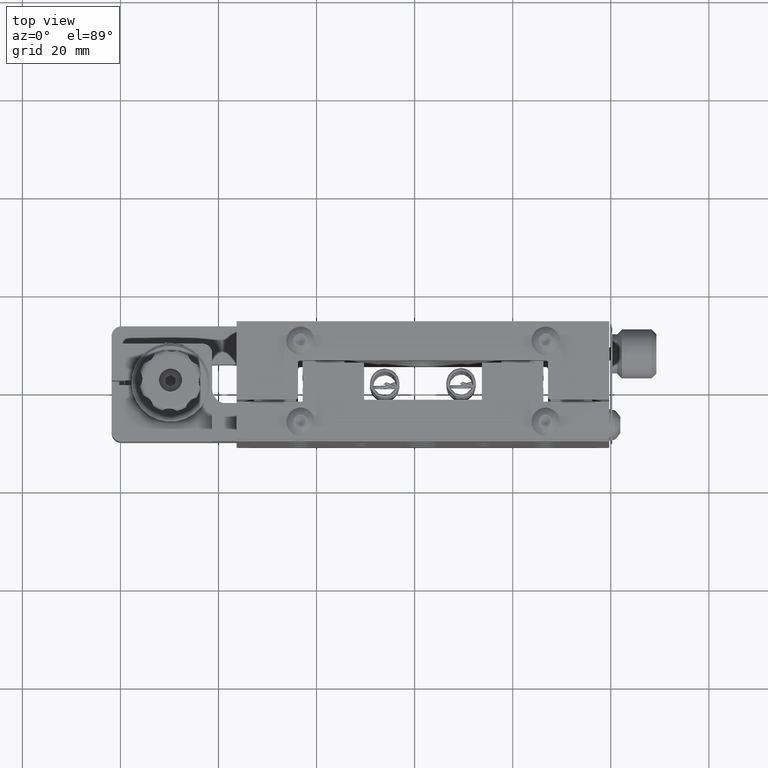
[diagram: clean part render]
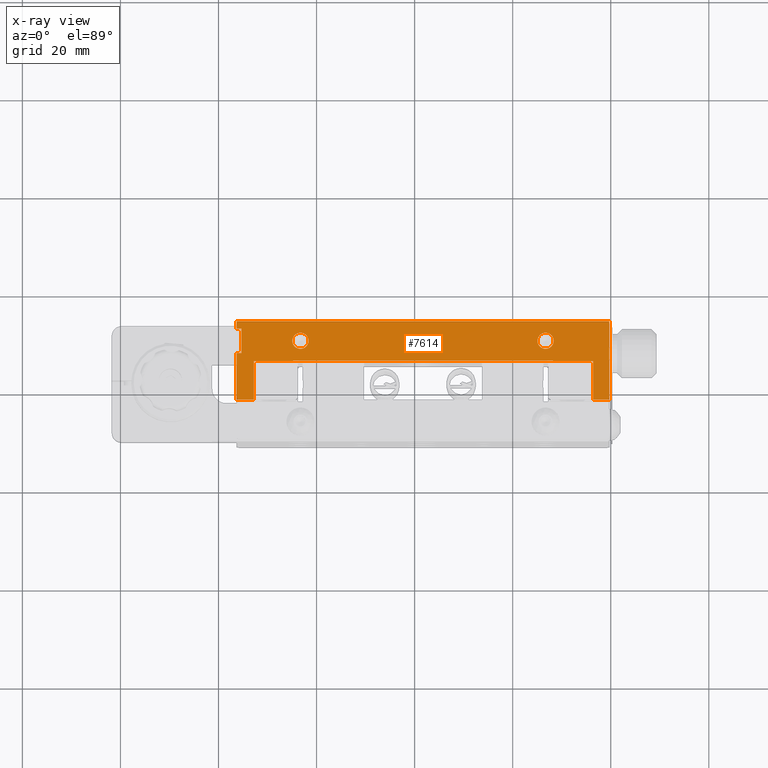
[diagram: x-ray — body ghosted, one internal face saturated and labeled with its STEP entity id]
A machine part, top view, then the same camera in x-ray: the body is ghosted and one INTERNAL B-rep face — a face not visible from any outside direction — is saturated and labeled: STEP entity #7614.
In plain terms, the highlighted planar face has unit normal (0, 0, 1).
Its self-contained STEP definition (entity closure, byte-faithful):
#820 = CARTESIAN_POINT ( 'NONE',  ( 56.40557582776700900, 5.506442215611681200, 149.1000000000000500 ) ) ;
#864 = VECTOR ( 'NONE', #60832, 1000.000000000000000 ) ;
#947 = ORIENTED_EDGE ( 'NONE', *, *, #56335, .F. ) ;
#1408 = VECTOR ( 'NONE', #55288, 1000.000000000000000 ) ;
#1914 = DIRECTION ( 'NONE',  ( -7.278135407893189700E-014, 1.000000000000000000, 5.472125369155490400E-016 ) ) ;
#2056 = FACE_OUTER_BOUND ( 'NONE', #63802, .T. ) ;
#2458 = VERTEX_POINT ( 'NONE', #46711 ) ;
#2648 = VECTOR ( 'NONE', #28268, 1000.000000000000000 ) ;
#2747 = ORIENTED_EDGE ( 'NONE', *, *, #65375, .F. ) ;
#3080 = ORIENTED_EDGE ( 'NONE', *, *, #48717, .F. ) ;
#3764 = EDGE_CURVE ( 'NONE', #31177, #30859, #19625, .T. ) ;
#3802 = CARTESIAN_POINT ( 'NONE',  ( 59.70557582776758900, -2.393557784388060700, 149.1000000000000500 ) ) ;
#4157 = AXIS2_PLACEMENT_3D ( 'NONE', #20959, #66949, #16144 ) ;
#4356 = ORIENTED_EDGE ( 'NONE', *, *, #31666, .F. ) ;
#4520 = VERTEX_POINT ( 'NONE', #28987 ) ;
#4550 = VERTEX_POINT ( 'NONE', #68822 ) ;
#4900 = CIRCLE ( 'NONE', #18311, 1.649999999999991700 ) ;
#5215 = ORIENTED_EDGE ( 'NONE', *, *, #49079, .F. ) ;
#6058 = CARTESIAN_POINT ( 'NONE',  ( -12.79442417223300100, 5.506442215606743000, 149.1000000000000500 ) ) ;
#6186 = CIRCLE ( 'NONE', #31640, 1.649999999999991700 ) ;
#6235 = DIRECTION ( 'NONE',  ( -1.000000000000000000, -7.116302393586873400E-014, 4.440892098500627100E-016 ) ) ;
#6727 = DIRECTION ( 'NONE',  ( 1.000000000000000000, 7.158612722269235200E-014, -4.440892098500625200E-016 ) ) ;
#6737 = CARTESIAN_POINT ( 'NONE',  ( 56.40557582776700900, 5.506442215611681200, 149.1000000000000500 ) ) ;
#7093 = ORIENTED_EDGE ( 'NONE', *, *, #15654, .F. ) ;
#7269 = VERTEX_POINT ( 'NONE', #70246 ) ;
#7448 = DIRECTION ( 'NONE',  ( -7.278135407893189700E-014, 1.000000000000000000, 5.472125369155490400E-016 ) ) ;
#7523 = CARTESIAN_POINT ( 'NONE',  ( -4.794424172233021900, 5.606442215607493100, 149.1000000000000500 ) ) ;
#7614 = ADVANCED_FACE ( 'NONE', ( #44768, #59105, #2056 ), #9675, .T. ) ;
#7848 = CARTESIAN_POINT ( 'NONE',  ( 59.70557582776632400, 13.60644221561203600, 149.1000000000000500 ) ) ;
#8154 = CARTESIAN_POINT ( 'NONE',  ( 56.40557582776757800, -2.393557784387919900, 149.1000000000000500 ) ) ;
#9675 = PLANE ( 'NONE',  #4157 ) ;
#10120 = VERTEX_POINT ( 'NONE', #34339 ) ;
#10279 = VECTOR ( 'NONE', #32847, 1000.000000000000000 ) ;
#10316 = LINE ( 'NONE', #66948, #34373 ) ;
#11593 = VECTOR ( 'NONE', #7448, 1000.000000000000000 ) ;
#12334 = ORIENTED_EDGE ( 'NONE', *, *, #64080, .F. ) ;
#12365 = DIRECTION ( 'NONE',  ( 7.278135407893189700E-014, -1.000000000000000000, -5.472125369155490400E-016 ) ) ;
#12730 = VECTOR ( 'NONE', #6727, 1000.000000000000000 ) ;
#12954 = EDGE_CURVE ( 'NONE', #2458, #10120, #10316, .T. ) ;
#13065 = VERTEX_POINT ( 'NONE', #18383 ) ;
#13243 = CARTESIAN_POINT ( 'NONE',  ( 56.40557582776757800, -2.393557784387919900, 149.1000000000000500 ) ) ;
#13632 = VERTEX_POINT ( 'NONE', #43247 ) ;
#14792 = CARTESIAN_POINT ( 'NONE',  ( -16.29442417223355800, 13.60644221560661500, 149.1000000000000500 ) ) ;
#15378 = DIRECTION ( 'NONE',  ( 1.000000000000000000, 7.149163416146877300E-014, 0.0000000000000000000 ) ) ;
#15654 = EDGE_CURVE ( 'NONE', #16194, #28908, #37516, .T. ) ;
#15893 = EDGE_LOOP ( 'NONE', ( #12334, #22520 ) ) ;
#16144 = DIRECTION ( 'NONE',  ( 1.000000000000000000, 7.158612722269235200E-014, -4.440892098500625200E-016 ) ) ;
#16194 = VERTEX_POINT ( 'NONE', #13243 ) ;
#16702 = EDGE_CURVE ( 'NONE', #35265, #18426, #54322, .T. ) ;
#17980 = CARTESIAN_POINT ( 'NONE',  ( -16.29442417223344800, 12.10644221560686000, 149.1000000000000500 ) ) ;
#18311 = AXIS2_PLACEMENT_3D ( 'NONE', #43495, #38250, #15378 ) ;
#18373 = LINE ( 'NONE', #44773, #10279 ) ;
#18383 = CARTESIAN_POINT ( 'NONE',  ( -1.644424172233330200, 9.606442215607630800, 149.1000000000000500 ) ) ;
#18426 = VERTEX_POINT ( 'NONE', #14792 ) ;
#19217 = CARTESIAN_POINT ( 'NONE',  ( 46.70557582776671500, 9.606442215611096500, 149.1000000000000500 ) ) ;
#19625 = LINE ( 'NONE', #30358, #11593 ) ;
#20673 = VECTOR ( 'NONE', #6235, 1000.000000000000000 ) ;
#20861 = VECTOR ( 'NONE', #24738, 1000.000000000000000 ) ;
#20959 = CARTESIAN_POINT ( 'NONE',  ( -15.29442417223343400, 12.10644221560692900, 149.1000000000000500 ) ) ;
#22373 = DIRECTION ( 'NONE',  ( -7.278135407893189700E-014, 1.000000000000000000, 5.472125369155490400E-016 ) ) ;
#22470 = AXIS2_PLACEMENT_3D ( 'NONE', #39517, #27835, #67648 ) ;
#22520 = ORIENTED_EDGE ( 'NONE', *, *, #23789, .F. ) ;
#22611 = VECTOR ( 'NONE', #22753, 1000.000000000000000 ) ;
#22753 = DIRECTION ( 'NONE',  ( -1.000000000000000000, -7.158612722269235200E-014, 4.440892098500625200E-016 ) ) ;
#23151 = VECTOR ( 'NONE', #66470, 1000.000000000000000 ) ;
#23789 = EDGE_CURVE ( 'NONE', #13632, #7269, #59916, .T. ) ;
#23949 = DIRECTION ( 'NONE',  ( -3.885780586188391500E-016, 4.788109698010773900E-016, 1.000000000000000000 ) ) ;
#24738 = DIRECTION ( 'NONE',  ( -1.000000000000000000, -7.132428216971471900E-014, 4.440892098500627100E-016 ) ) ;
#25913 = CARTESIAN_POINT ( 'NONE',  ( -4.794424172232987200, 5.506442215607318500, 149.1000000000000500 ) ) ;
#26236 = EDGE_CURVE ( 'NONE', #59611, #4520, #57913, .T. ) ;
#27319 = VERTEX_POINT ( 'NONE', #37704 ) ;
#27835 = DIRECTION ( 'NONE',  ( -3.885780586188391500E-016, 4.788109698010773900E-016, 1.000000000000000000 ) ) ;
#28268 = DIRECTION ( 'NONE',  ( -1.000000000000000000, -7.136928678819525100E-014, 4.440892098500626200E-016 ) ) ;
#28908 = VERTEX_POINT ( 'NONE', #820 ) ;
#28987 = CARTESIAN_POINT ( 'NONE',  ( -12.79442417223300100, 5.506442215606743000, 149.1000000000000500 ) ) ;
#29509 = VECTOR ( 'NONE', #1914, 1000.000000000000000 ) ;
#29815 = CARTESIAN_POINT ( 'NONE',  ( -4.794424172232987200, 5.506442215607318500, 149.1000000000000500 ) ) ;
#30101 = CARTESIAN_POINT ( 'NONE',  ( -12.79442417223243200, -2.393557784392760900, 149.1000000000000500 ) ) ;
#30358 = CARTESIAN_POINT ( 'NONE',  ( -16.29442417223242900, -2.393557784393010000, 149.1000000000000500 ) ) ;
#30859 = VERTEX_POINT ( 'NONE', #62300 ) ;
#31177 = VERTEX_POINT ( 'NONE', #42665 ) ;
#31640 = AXIS2_PLACEMENT_3D ( 'NONE', #61223, #72683, #32604 ) ;
#31666 = EDGE_CURVE ( 'NONE', #28908, #2458, #66084, .T. ) ;
#32546 = VERTEX_POINT ( 'NONE', #41176 ) ;
#32604 = DIRECTION ( 'NONE',  ( 1.000000000000000000, 7.149163416146877300E-014, 0.0000000000000000000 ) ) ;
#32847 = DIRECTION ( 'NONE',  ( -1.000000000000000000, -7.134120595192787600E-014, 4.440892098500627100E-016 ) ) ;
#33502 = LINE ( 'NONE', #71783, #1408 ) ;
#34175 = ORIENTED_EDGE ( 'NONE', *, *, #39269, .F. ) ;
#34339 = CARTESIAN_POINT ( 'NONE',  ( 48.20557582776703500, 5.606442215611266100, 149.1000000000000500 ) ) ;
#34373 = VECTOR ( 'NONE', #22373, 1000.000000000000000 ) ;
#35265 = VERTEX_POINT ( 'NONE', #63107 ) ;
#35962 = LINE ( 'NONE', #7523, #20861 ) ;
#37516 = LINE ( 'NONE', #8154, #29509 ) ;
#37704 = CARTESIAN_POINT ( 'NONE',  ( -4.944424172233313500, 9.606442215607392800, 149.1000000000000500 ) ) ;
#38250 = DIRECTION ( 'NONE',  ( -3.885780586188391500E-016, 4.788109698010773900E-016, 1.000000000000000000 ) ) ;
#38802 = ORIENTED_EDGE ( 'NONE', *, *, #62205, .F. ) ;
#39269 = EDGE_CURVE ( 'NONE', #13065, #27319, #4900, .T. ) ;
#39338 = VECTOR ( 'NONE', #12365, 1000.000000000000000 ) ;
#39517 = CARTESIAN_POINT ( 'NONE',  ( 46.70557582776671500, 9.606442215611096500, 149.1000000000000500 ) ) ;
#39637 = VECTOR ( 'NONE', #65473, 1000.000000000000000 ) ;
#40036 = ORIENTED_EDGE ( 'NONE', *, *, #12954, .F. ) ;
#40473 = ORIENTED_EDGE ( 'NONE', *, *, #49244, .F. ) ;
#40820 = CARTESIAN_POINT ( 'NONE',  ( -16.29442417223311400, 7.106442215606504600, 149.1000000000000500 ) ) ;
#41176 = CARTESIAN_POINT ( 'NONE',  ( -15.29442417223307200, 7.106442215606563200, 149.1000000000000500 ) ) ;
#42508 = CIRCLE ( 'NONE', #22470, 1.649999999999991700 ) ;
#42541 = VERTEX_POINT ( 'NONE', #42726 ) ;
#42665 = CARTESIAN_POINT ( 'NONE',  ( -16.29442417223242900, -2.393557784393010000, 149.1000000000000500 ) ) ;
#42726 = CARTESIAN_POINT ( 'NONE',  ( -12.79442417223243200, -2.393557784392760900, 149.1000000000000500 ) ) ;
#43247 = CARTESIAN_POINT ( 'NONE',  ( 45.05557582776672400, 9.606442215610977400, 149.1000000000000500 ) ) ;
#43435 = CARTESIAN_POINT ( 'NONE',  ( 59.70557582776632400, 13.60644221561203600, 149.1000000000000500 ) ) ;
#43495 = CARTESIAN_POINT ( 'NONE',  ( -3.294424172233322100, 9.606442215607511800, 149.1000000000000500 ) ) ;
#44399 = CARTESIAN_POINT ( 'NONE',  ( -16.29442417223344800, 12.10644221560686000, 149.1000000000000500 ) ) ;
#44586 = DIRECTION ( 'NONE',  ( -7.278135407893189700E-014, 1.000000000000000000, 5.472125369155490400E-016 ) ) ;
#44768 = FACE_BOUND ( 'NONE', #72884, .T. ) ;
#44773 = CARTESIAN_POINT ( 'NONE',  ( -12.79442417223243200, -2.393557784392760900, 149.1000000000000500 ) ) ;
#46711 = CARTESIAN_POINT ( 'NONE',  ( 48.20557582776704900, 5.506442215611093300, 149.1000000000000500 ) ) ;
#47571 = VERTEX_POINT ( 'NONE', #73674 ) ;
#48399 = LINE ( 'NONE', #40820, #12730 ) ;
#48717 = EDGE_CURVE ( 'NONE', #51477, #62180, #68903, .T. ) ;
#49079 = EDGE_CURVE ( 'NONE', #47571, #35265, #54709, .T. ) ;
#49244 = EDGE_CURVE ( 'NONE', #10120, #4550, #35962, .T. ) ;
#51477 = VERTEX_POINT ( 'NONE', #43435 ) ;
#52549 = LINE ( 'NONE', #59578, #864 ) ;
#53597 = LINE ( 'NONE', #29815, #39338 ) ;
#53971 = LINE ( 'NONE', #30101, #39637 ) ;
#53993 = ORIENTED_EDGE ( 'NONE', *, *, #59365, .F. ) ;
#54322 = LINE ( 'NONE', #17980, #61774 ) ;
#54709 = LINE ( 'NONE', #44399, #22611 ) ;
#55142 = EDGE_CURVE ( 'NONE', #4550, #59611, #53597, .T. ) ;
#55288 = DIRECTION ( 'NONE',  ( -7.278135407893189700E-014, 1.000000000000000000, 5.472125369155490400E-016 ) ) ;
#55496 = CARTESIAN_POINT ( 'NONE',  ( 56.40557582776757800, -2.393557784387919900, 149.1000000000000500 ) ) ;
#56335 = EDGE_CURVE ( 'NONE', #27319, #13065, #6186, .T. ) ;
#56391 = EDGE_CURVE ( 'NONE', #62180, #16194, #60608, .T. ) ;
#57372 = ORIENTED_EDGE ( 'NONE', *, *, #55142, .F. ) ;
#57913 = LINE ( 'NONE', #6058, #2648 ) ;
#59105 = FACE_BOUND ( 'NONE', #15893, .T. ) ;
#59365 = EDGE_CURVE ( 'NONE', #30859, #32546, #48399, .T. ) ;
#59578 = CARTESIAN_POINT ( 'NONE',  ( -16.29442417223355800, 13.60644221560661500, 149.1000000000000500 ) ) ;
#59611 = VERTEX_POINT ( 'NONE', #25913 ) ;
#59916 = CIRCLE ( 'NONE', #71540, 1.649999999999991700 ) ;
#60072 = ORIENTED_EDGE ( 'NONE', *, *, #16702, .F. ) ;
#60608 = LINE ( 'NONE', #55496, #23151 ) ;
#60832 = DIRECTION ( 'NONE',  ( 1.000000000000000000, 7.144917536932576000E-014, -4.440892098500626200E-016 ) ) ;
#61223 = CARTESIAN_POINT ( 'NONE',  ( -3.294424172233322100, 9.606442215607511800, 149.1000000000000500 ) ) ;
#61336 = ORIENTED_EDGE ( 'NONE', *, *, #65623, .F. ) ;
#61774 = VECTOR ( 'NONE', #44586, 1000.000000000000000 ) ;
#62180 = VERTEX_POINT ( 'NONE', #3802 ) ;
#62205 = EDGE_CURVE ( 'NONE', #18426, #51477, #52549, .T. ) ;
#62300 = CARTESIAN_POINT ( 'NONE',  ( -16.29442417223311400, 7.106442215606504600, 149.1000000000000500 ) ) ;
#63107 = CARTESIAN_POINT ( 'NONE',  ( -16.29442417223344800, 12.10644221560686000, 149.1000000000000500 ) ) ;
#63802 = EDGE_LOOP ( 'NONE', ( #5215, #73294, #53993, #68770, #2747, #61336, #73181, #57372, #40473, #40036, #4356, #7093, #68544, #3080, #38802, #60072 ) ) ;
#64080 = EDGE_CURVE ( 'NONE', #7269, #13632, #42508, .T. ) ;
#65138 = DIRECTION ( 'NONE',  ( 7.278135407893189700E-014, -1.000000000000000000, -5.472125369155490400E-016 ) ) ;
#65375 = EDGE_CURVE ( 'NONE', #42541, #31177, #18373, .T. ) ;
#65473 = DIRECTION ( 'NONE',  ( 7.278135407893189700E-014, -1.000000000000000000, -5.472125369155490400E-016 ) ) ;
#65623 = EDGE_CURVE ( 'NONE', #4520, #42541, #53971, .T. ) ;
#66084 = LINE ( 'NONE', #6737, #20673 ) ;
#66470 = DIRECTION ( 'NONE',  ( -1.000000000000000000, 4.336956215776671500E-014, 4.440892098501254300E-016 ) ) ;
#66948 = CARTESIAN_POINT ( 'NONE',  ( 48.20557582776704900, 5.506442215611093300, 149.1000000000000500 ) ) ;
#66949 = DIRECTION ( 'NONE',  ( 4.440892098500282500E-016, 4.788109698011369500E-016, 1.000000000000000000 ) ) ;
#67648 = DIRECTION ( 'NONE',  ( 1.000000000000000000, 7.149163416146877300E-014, 0.0000000000000000000 ) ) ;
#67947 = VECTOR ( 'NONE', #65138, 1000.000000000000000 ) ;
#68544 = ORIENTED_EDGE ( 'NONE', *, *, #56391, .F. ) ;
#68770 = ORIENTED_EDGE ( 'NONE', *, *, #3764, .F. ) ;
#68822 = CARTESIAN_POINT ( 'NONE',  ( -4.794424172233021900, 5.606442215607493100, 149.1000000000000500 ) ) ;
#68903 = LINE ( 'NONE', #7848, #67947 ) ;
#69500 = DIRECTION ( 'NONE',  ( 1.000000000000000000, 7.149163416146877300E-014, 0.0000000000000000000 ) ) ;
#70246 = CARTESIAN_POINT ( 'NONE',  ( 48.35557582776670700, 9.606442215611213700, 149.1000000000000500 ) ) ;
#71540 = AXIS2_PLACEMENT_3D ( 'NONE', #19217, #23949, #69500 ) ;
#71783 = CARTESIAN_POINT ( 'NONE',  ( -15.29442417223307200, 7.106442215606563200, 149.1000000000000500 ) ) ;
#72331 = EDGE_CURVE ( 'NONE', #32546, #47571, #33502, .T. ) ;
#72683 = DIRECTION ( 'NONE',  ( -3.885780586188391500E-016, 4.788109698010773900E-016, 1.000000000000000000 ) ) ;
#72884 = EDGE_LOOP ( 'NONE', ( #34175, #947 ) ) ;
#73181 = ORIENTED_EDGE ( 'NONE', *, *, #26236, .F. ) ;
#73294 = ORIENTED_EDGE ( 'NONE', *, *, #72331, .F. ) ;
#73674 = CARTESIAN_POINT ( 'NONE',  ( -15.29442417223343400, 12.10644221560693100, 149.1000000000000500 ) ) ;